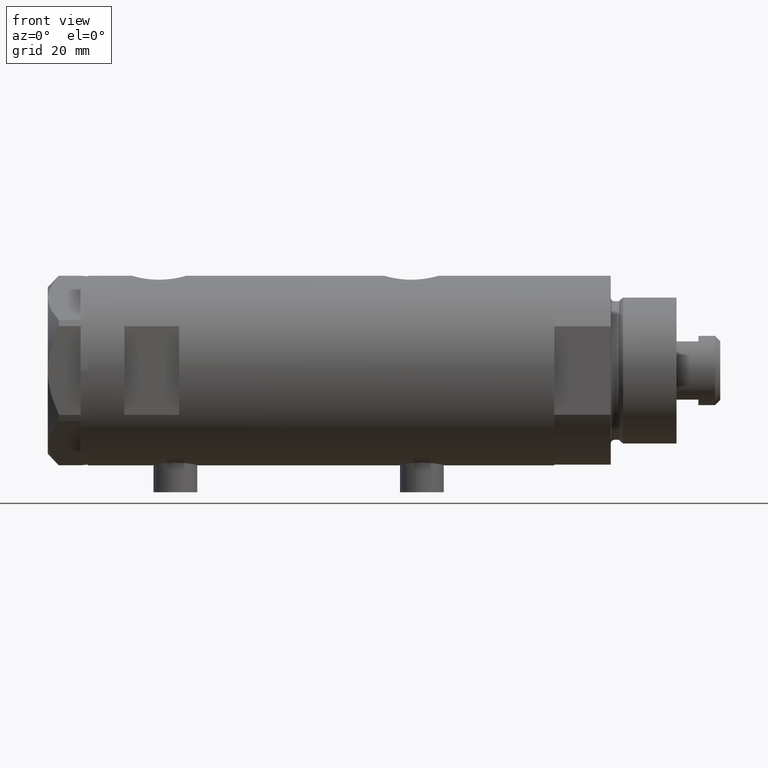
[diagram: clean part render]
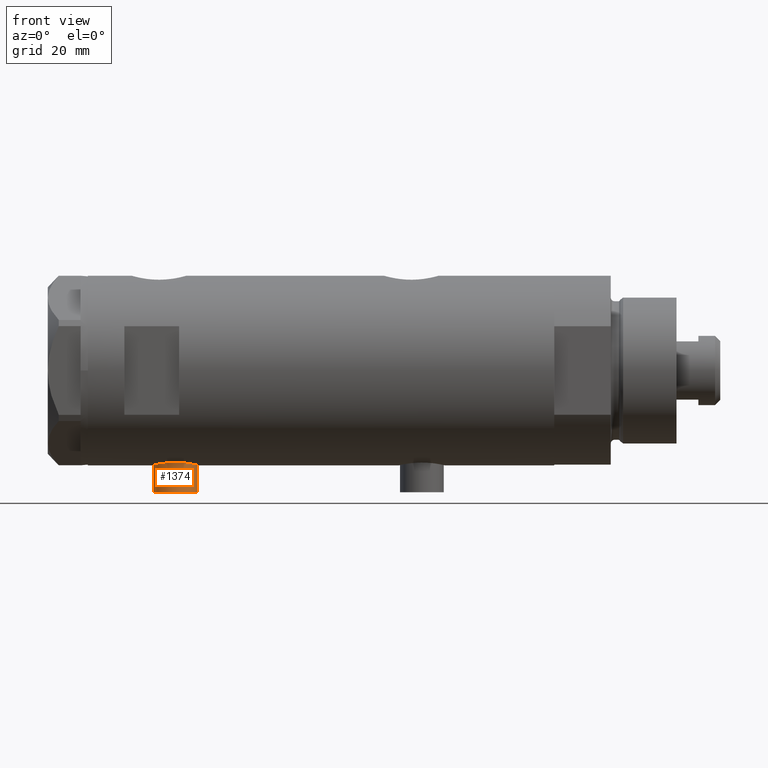
[diagram: same view with one face highlighted and labeled with its STEP entity id]
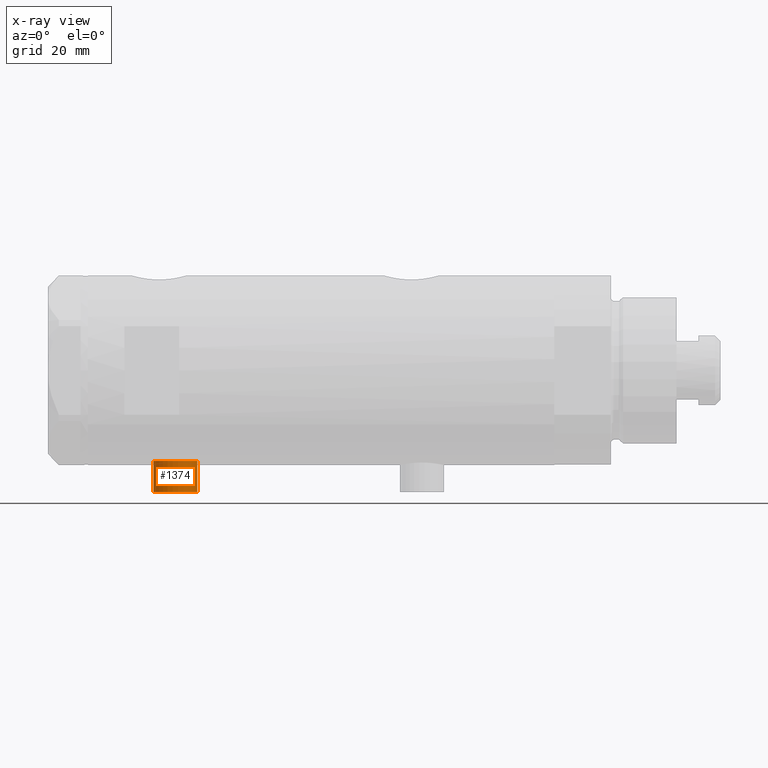
[diagram: x-ray of the same camera — body ghosted, the highlighted face saturated]
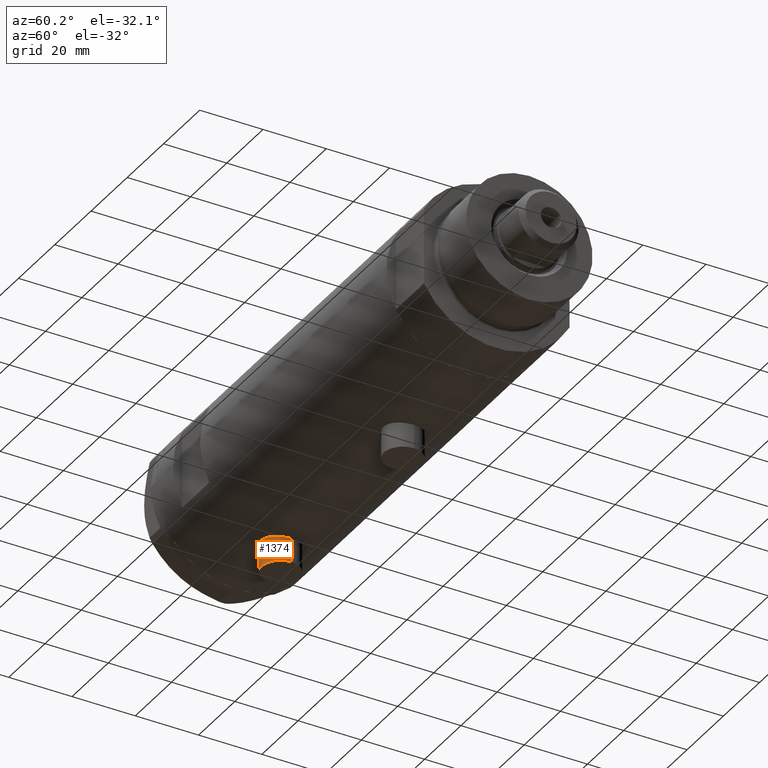
[diagram: same view with one face highlighted and labeled with its STEP entity id]
A machine part, front view. The second image highlights one B-rep face of the part: STEP entity #1374.
The next image is the same camera in x-ray: the body ghosted, the highlighted face saturated — about 0% of this face is hidden behind the body in this view.
A second angle (auxiliary view) of the same face is appended — the face is thin or edge-on in the first view.
In plain terms, the highlighted cylindrical surface (edge-blend (fillet) strip) has radius 6 mm, axis along (0, 0, 1).
Its self-contained STEP definition (entity closure, byte-faithful):
#68 = LINE ( 'NONE', #3653, #1227 ) ;
#73 = LINE ( 'NONE', #4476, #3501 ) ;
#210 = CARTESIAN_POINT ( 'NONE',  ( -24.80000000000000426, 7.347880794884107903E-16, 45.95000000000000284 ) ) ;
#394 = DIRECTION ( 'NONE',  ( 1.000000000000000000, -0.000000000000000000, -0.000000000000000000 ) ) ;
#399 = VERTEX_POINT ( 'NONE', #1999 ) ;
#517 = CARTESIAN_POINT ( 'NONE',  ( -24.80000000000000426, 0.000000000000000000, 33.95000000000000995 ) ) ;
#545 = ORIENTED_EDGE ( 'NONE', *, *, #3191, .T. ) ;
#794 = EDGE_CURVE ( 'NONE', #2360, #1503, #73, .T. ) ;
#824 = ORIENTED_EDGE ( 'NONE', *, *, #2438, .F. ) ;
#867 = DIRECTION ( 'NONE',  ( 1.000000000000000000, -0.000000000000000000, -0.000000000000000000 ) ) ;
#876 = ORIENTED_EDGE ( 'NONE', *, *, #3315, .T. ) ;
#901 = DIRECTION ( 'NONE',  ( -1.000000000000000000, 0.000000000000000000, 0.000000000000000000 ) ) ;
#1227 = VECTOR ( 'NONE', #867, 1000.000000000000000 ) ;
#1374 = ADVANCED_FACE ( 'NONE', ( #3490 ), #2047, .T. ) ;
#1503 = VERTEX_POINT ( 'NONE', #210 ) ;
#1512 = CARTESIAN_POINT ( 'NONE',  ( -24.80000000000000426, 0.000000000000000000, 39.95000000000000284 ) ) ;
#1618 = CIRCLE ( 'NONE', #3030, 5.999999999999998224 ) ;
#1623 = AXIS2_PLACEMENT_3D ( 'NONE', #1512, #4522, #3397 ) ;
#1879 = ORIENTED_EDGE ( 'NONE', *, *, #794, .F. ) ;
#1999 = CARTESIAN_POINT ( 'NONE',  ( -33.39999999999999858, 0.000000000000000000, 33.95000000000000995 ) ) ;
#2047 = CYLINDRICAL_SURFACE ( 'NONE', #2874, 5.999999999999998224 ) ;
#2084 = EDGE_LOOP ( 'NONE', ( #1879, #824, #876, #545 ) ) ;
#2360 = VERTEX_POINT ( 'NONE', #3061 ) ;
#2438 = EDGE_CURVE ( 'NONE', #399, #2360, #1618, .T. ) ;
#2874 = AXIS2_PLACEMENT_3D ( 'NONE', #4286, #4671, #3273 ) ;
#3030 = AXIS2_PLACEMENT_3D ( 'NONE', #3607, #901, #4722 ) ;
#3061 = CARTESIAN_POINT ( 'NONE',  ( -33.39999999999999858, 7.347880794884107903E-16, 45.95000000000000284 ) ) ;
#3191 = EDGE_CURVE ( 'NONE', #4496, #1503, #3845, .T. ) ;
#3273 = DIRECTION ( 'NONE',  ( 0.000000000000000000, 0.000000000000000000, -1.000000000000000000 ) ) ;
#3315 = EDGE_CURVE ( 'NONE', #399, #4496, #68, .T. ) ;
#3397 = DIRECTION ( 'NONE',  ( 0.000000000000000000, 0.000000000000000000, 1.000000000000000000 ) ) ;
#3490 = FACE_OUTER_BOUND ( 'NONE', #2084, .T. ) ;
#3501 = VECTOR ( 'NONE', #394, 1000.000000000000000 ) ;
#3607 = CARTESIAN_POINT ( 'NONE',  ( -33.39999999999999858, 0.000000000000000000, 39.95000000000000284 ) ) ;
#3653 = CARTESIAN_POINT ( 'NONE',  ( -33.39999999999999858, 0.000000000000000000, 33.95000000000000995 ) ) ;
#3845 = CIRCLE ( 'NONE', #1623, 5.999999999999998224 ) ;
#4286 = CARTESIAN_POINT ( 'NONE',  ( -33.39999999999999858, 0.000000000000000000, 39.95000000000000284 ) ) ;
#4476 = CARTESIAN_POINT ( 'NONE',  ( -33.39999999999999858, 7.347880794884111847E-16, 45.95000000000000284 ) ) ;
#4496 = VERTEX_POINT ( 'NONE', #517 ) ;
#4522 = DIRECTION ( 'NONE',  ( -1.000000000000000000, 0.000000000000000000, 0.000000000000000000 ) ) ;
#4671 = DIRECTION ( 'NONE',  ( 1.000000000000000000, -0.000000000000000000, -0.000000000000000000 ) ) ;
#4722 = DIRECTION ( 'NONE',  ( 0.000000000000000000, 0.000000000000000000, 1.000000000000000000 ) ) ;